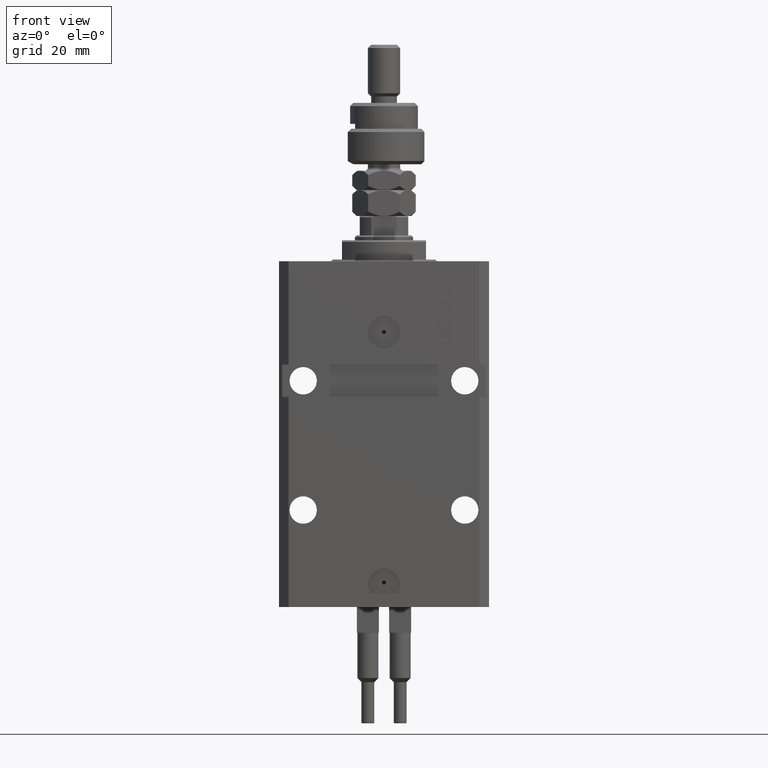
[diagram: clean part render]
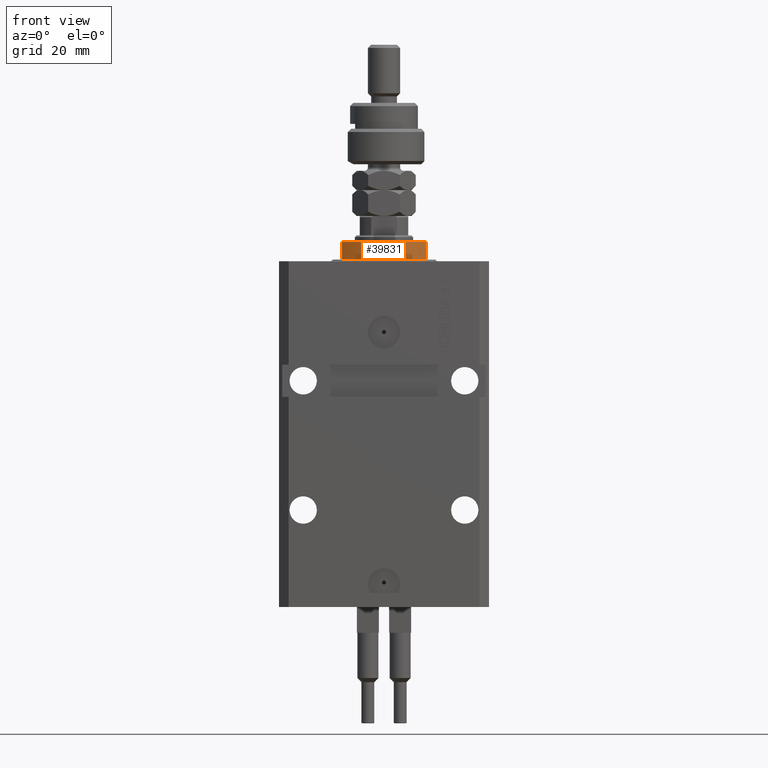
[diagram: same view with one face highlighted and labeled with its STEP entity id]
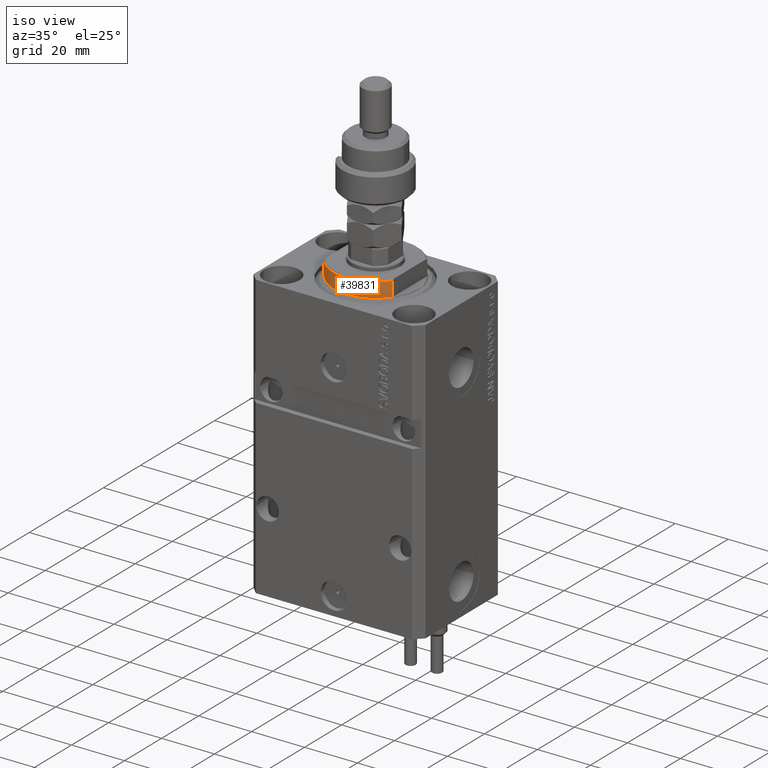
[diagram: same view with one face highlighted and labeled with its STEP entity id]
A machine part, front view. The second image highlights one B-rep face of the part: STEP entity #39831.
A second angle (iso view) of the same face is appended — the face is thin or edge-on in the first view.
In plain terms, the highlighted cylindrical surface (partial cylindrical patch) has radius 16 mm, axis along (0, 0, -1).
Its self-contained STEP definition (entity closure, byte-faithful):
#691 = LINE ( 'NONE', #15773, #9264 ) ;
#1967 = DIRECTION ( 'NONE',  ( 0.000000000000000000, 0.000000000000000000, -1.000000000000000000 ) ) ;
#4936 = VERTEX_POINT ( 'NONE', #27804 ) ;
#5348 = AXIS2_PLACEMENT_3D ( 'NONE', #47663, #48442, #17002 ) ;
#6713 = VERTEX_POINT ( 'NONE', #45702 ) ;
#7912 = CARTESIAN_POINT ( 'NONE',  ( 0.000000000000000000, 0.000000000000000000, -0.4999999999999995559 ) ) ;
#9264 = VECTOR ( 'NONE', #20419, 1000.000000000000000 ) ;
#9408 = CARTESIAN_POINT ( 'NONE',  ( -13.00000000000000000, -9.327379053088815652, -6.000000000000023981 ) ) ;
#13395 = EDGE_CURVE ( 'NONE', #4936, #49917, #691, .T. ) ;
#15722 = ORIENTED_EDGE ( 'NONE', *, *, #26037, .T. ) ;
#15773 = CARTESIAN_POINT ( 'NONE',  ( -13.00000000000000000, -9.327379053088813876, -6.500000000000000000 ) ) ;
#15875 = ORIENTED_EDGE ( 'NONE', *, *, #13395, .T. ) ;
#17002 = DIRECTION ( 'NONE',  ( -1.000000000000000000, 0.000000000000000000, 0.000000000000000000 ) ) ;
#17560 = EDGE_CURVE ( 'NONE', #6713, #33224, #18324, .T. ) ;
#18324 = LINE ( 'NONE', #49769, #42473 ) ;
#19454 = CIRCLE ( 'NONE', #5348, 16.00000000000000000 ) ;
#20419 = DIRECTION ( 'NONE',  ( 0.000000000000000000, 0.000000000000000000, -1.000000000000000000 ) ) ;
#22279 = AXIS2_PLACEMENT_3D ( 'NONE', #7912, #23998, #34935 ) ;
#23998 = DIRECTION ( 'NONE',  ( -0.000000000000000000, -0.000000000000000000, -1.000000000000000000 ) ) ;
#26037 = EDGE_CURVE ( 'NONE', #49917, #33224, #19454, .T. ) ;
#26512 = AXIS2_PLACEMENT_3D ( 'NONE', #38382, #49832, #30341 ) ;
#27804 = CARTESIAN_POINT ( 'NONE',  ( -13.00000000000000000, -9.327379053088815652, -0.4999999999999995559 ) ) ;
#30341 = DIRECTION ( 'NONE',  ( 1.000000000000000000, 0.000000000000000000, 0.000000000000000000 ) ) ;
#31973 = EDGE_LOOP ( 'NONE', ( #49095, #44777, #15875, #15722 ) ) ;
#33224 = VERTEX_POINT ( 'NONE', #36494 ) ;
#34935 = DIRECTION ( 'NONE',  ( 1.000000000000000000, 0.000000000000000000, 0.000000000000000000 ) ) ;
#36494 = CARTESIAN_POINT ( 'NONE',  ( 13.00000000000000000, -9.327379053088815652, -6.000000000000023981 ) ) ;
#37545 = EDGE_CURVE ( 'NONE', #6713, #4936, #43839, .T. ) ;
#38125 = FACE_OUTER_BOUND ( 'NONE', #31973, .T. ) ;
#38382 = CARTESIAN_POINT ( 'NONE',  ( 0.000000000000000000, 0.000000000000000000, -6.500000000000000000 ) ) ;
#39831 = ADVANCED_FACE ( 'NONE', ( #38125 ), #50082, .T. ) ;
#42473 = VECTOR ( 'NONE', #1967, 1000.000000000000000 ) ;
#43839 = CIRCLE ( 'NONE', #22279, 16.00000000000000000 ) ;
#44777 = ORIENTED_EDGE ( 'NONE', *, *, #37545, .T. ) ;
#45702 = CARTESIAN_POINT ( 'NONE',  ( 13.00000000000000000, -9.327379053088815652, -0.4999999999999995559 ) ) ;
#47663 = CARTESIAN_POINT ( 'NONE',  ( 0.000000000000000000, 0.000000000000000000, -6.000000000000023981 ) ) ;
#48442 = DIRECTION ( 'NONE',  ( 0.000000000000000000, 0.000000000000000000, 1.000000000000000000 ) ) ;
#49095 = ORIENTED_EDGE ( 'NONE', *, *, #17560, .F. ) ;
#49769 = CARTESIAN_POINT ( 'NONE',  ( 13.00000000000000000, -9.327379053088813876, -6.500000000000000000 ) ) ;
#49832 = DIRECTION ( 'NONE',  ( -0.000000000000000000, -0.000000000000000000, 1.000000000000000000 ) ) ;
#49917 = VERTEX_POINT ( 'NONE', #9408 ) ;
#50082 = CYLINDRICAL_SURFACE ( 'NONE', #26512, 16.00000000000000000 ) ;